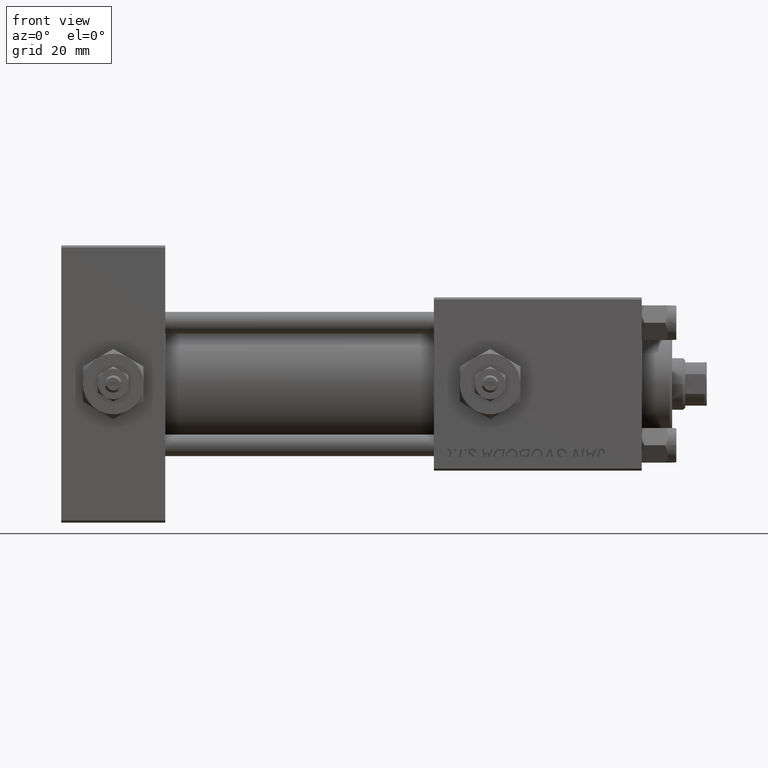
[diagram: clean part render]
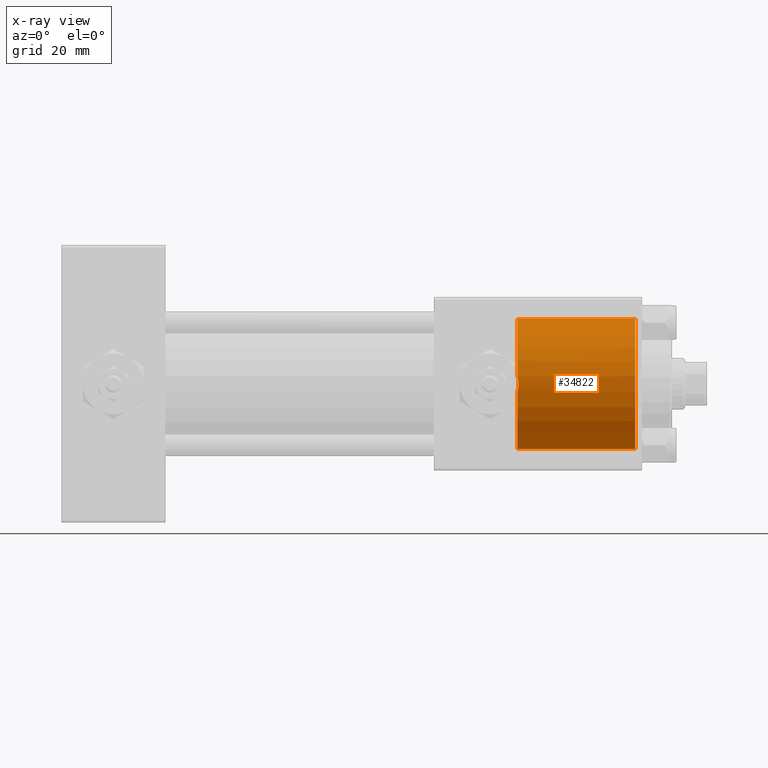
[diagram: x-ray — body ghosted, one internal face saturated and labeled with its STEP entity id]
A machine part, front view, then the same camera in x-ray: the body is ghosted and one INTERNAL B-rep face — a face not visible from any outside direction — is saturated and labeled: STEP entity #34822.
In plain terms, the highlighted cylindrical surface (partial cylindrical patch) has radius 15 mm, axis along (1, 0, 0).
Its self-contained STEP definition (entity closure, byte-faithful):
#416 = EDGE_CURVE ( 'NONE', #21000, #27237, #20303, .T. ) ;
#426 = CARTESIAN_POINT ( 'NONE',  ( 105.3000000000000114, -14.87930105885354060, 1.899052395275036220 ) ) ;
#827 = DIRECTION ( 'NONE',  ( 0.000000000000000000, 0.000000000000000000, -1.000000000000000000 ) ) ;
#1766 = ORIENTED_EDGE ( 'NONE', *, *, #31683, .F. ) ;
#1786 = EDGE_CURVE ( 'NONE', #30994, #14500, #28604, .T. ) ;
#2083 = EDGE_CURVE ( 'NONE', #21000, #30195, #32792, .T. ) ;
#2287 = VERTEX_POINT ( 'NONE', #38850 ) ;
#3849 = CARTESIAN_POINT ( 'NONE',  ( 105.5801520534215570, -15.00006670076156290, 0.3204703341157191243 ) ) ;
#5978 = AXIS2_PLACEMENT_3D ( 'NONE', #28137, #31802, #827 ) ;
#6795 = CARTESIAN_POINT ( 'NONE',  ( 132.5000000000000000, 0.000000000000000000, -15.00000000000000000 ) ) ;
#7241 = DIRECTION ( 'NONE',  ( 1.000000000000000000, -0.000000000000000000, -0.000000000000000000 ) ) ;
#8044 = CARTESIAN_POINT ( 'NONE',  ( 105.4859734583130120, -14.95804352012491023, -1.282095859327421650 ) ) ;
#8482 = AXIS2_PLACEMENT_3D ( 'NONE', #48656, #12694, #44709 ) ;
#9419 = VECTOR ( 'NONE', #19555, 1000.000000000000000 ) ;
#9993 = ORIENTED_EDGE ( 'NONE', *, *, #416, .T. ) ;
#10862 = ORIENTED_EDGE ( 'NONE', *, *, #2083, .F. ) ;
#11678 = CARTESIAN_POINT ( 'NONE',  ( 105.3000000000000114, 1.836970198721029589E-15, 15.00000000000000000 ) ) ;
#12694 = DIRECTION ( 'NONE',  ( 1.000000000000000000, 0.000000000000000000, 0.000000000000000000 ) ) ;
#12878 = EDGE_CURVE ( 'NONE', #2287, #27237, #18781, .T. ) ;
#13301 = CARTESIAN_POINT ( 'NONE',  ( 105.3000000000000114, -14.87930105885354060, 1.899052395275036220 ) ) ;
#14500 = VERTEX_POINT ( 'NONE', #6795 ) ;
#16691 = CARTESIAN_POINT ( 'NONE',  ( 105.3929950386892784, -14.91867580780344227, 1.590546560891513028 ) ) ;
#16944 = CARTESIAN_POINT ( 'NONE',  ( 105.3000000000000114, -14.87930105885354060, -1.899052395275038219 ) ) ;
#18278 = CARTESIAN_POINT ( 'NONE',  ( 105.3000000000000114, -14.87930105885354060, -1.899052395275038219 ) ) ;
#18535 = CARTESIAN_POINT ( 'NONE',  ( 105.3000000000000114, 0.000000000000000000, -15.00000000000000000 ) ) ;
#18781 = CIRCLE ( 'NONE', #32200, 15.00000000000000000 ) ;
#19555 = DIRECTION ( 'NONE',  ( 1.000000000000000000, -0.000000000000000000, -0.000000000000000000 ) ) ;
#20171 = AXIS2_PLACEMENT_3D ( 'NONE', #42713, #46911, #41942 ) ;
#20303 = B_SPLINE_CURVE_WITH_KNOTS ( 'NONE', 3,
 ( #16944, #8044, #44764, #3849, #20365, #51883, #16691, #426 ),
 .UNSPECIFIED., .F., .F.,
 ( 4, 2, 2, 4 ),
 ( 6.505213034913026604E-19, 0.001920194834846953571, 0.002880292252270429815, 0.003840389669693906709 ),
 .UNSPECIFIED. ) ;
#20365 = CARTESIAN_POINT ( 'NONE',  ( 105.5562853405998567, -14.98955309225332932, 0.6436176373405300133 ) ) ;
#21000 = VERTEX_POINT ( 'NONE', #18278 ) ;
#24075 = ORIENTED_EDGE ( 'NONE', *, *, #1786, .T. ) ;
#24269 = LINE ( 'NONE', #11678, #9419 ) ;
#26163 = ORIENTED_EDGE ( 'NONE', *, *, #12878, .F. ) ;
#27237 = VERTEX_POINT ( 'NONE', #13301 ) ;
#28137 = CARTESIAN_POINT ( 'NONE',  ( 105.3000000000000114, 0.000000000000000000, 0.000000000000000000 ) ) ;
#28604 = CIRCLE ( 'NONE', #8482, 15.00000000000000000 ) ;
#30195 = VERTEX_POINT ( 'NONE', #50155 ) ;
#30394 = FACE_OUTER_BOUND ( 'NONE', #39131, .T. ) ;
#30994 = VERTEX_POINT ( 'NONE', #45508 ) ;
#31683 = EDGE_CURVE ( 'NONE', #30195, #14500, #43707, .T. ) ;
#31802 = DIRECTION ( 'NONE',  ( 1.000000000000000000, 0.000000000000000000, 0.000000000000000000 ) ) ;
#32200 = AXIS2_PLACEMENT_3D ( 'NONE', #44250, #32691, #49226 ) ;
#32691 = DIRECTION ( 'NONE',  ( 1.000000000000000000, 0.000000000000000000, 0.000000000000000000 ) ) ;
#32792 = CIRCLE ( 'NONE', #5978, 15.00000000000000000 ) ;
#34575 = CYLINDRICAL_SURFACE ( 'NONE', #20171, 15.00000000000000000 ) ;
#34822 = ADVANCED_FACE ( 'NONE', ( #30394 ), #34575, .F. ) ;
#38850 = CARTESIAN_POINT ( 'NONE',  ( 105.3000000000000114, 1.836970198721029589E-15, 15.00000000000000000 ) ) ;
#39131 = EDGE_LOOP ( 'NONE', ( #26163, #49753, #24075, #1766, #10862, #9993 ) ) ;
#39350 = EDGE_CURVE ( 'NONE', #2287, #30994, #24269, .T. ) ;
#41942 = DIRECTION ( 'NONE',  ( 0.000000000000000000, 0.000000000000000000, -1.000000000000000000 ) ) ;
#42713 = CARTESIAN_POINT ( 'NONE',  ( 105.3000000000000114, 0.000000000000000000, 0.000000000000000000 ) ) ;
#43707 = LINE ( 'NONE', #18535, #47045 ) ;
#44250 = CARTESIAN_POINT ( 'NONE',  ( 105.3000000000000114, 0.000000000000000000, 0.000000000000000000 ) ) ;
#44709 = DIRECTION ( 'NONE',  ( 0.000000000000000000, 0.000000000000000000, 1.000000000000000000 ) ) ;
#44764 = CARTESIAN_POINT ( 'NONE',  ( 105.5796936925953986, -14.99986563316393529, -0.6502615138571983255 ) ) ;
#45508 = CARTESIAN_POINT ( 'NONE',  ( 132.5000000000000000, 1.836970198721029589E-15, 15.00000000000000000 ) ) ;
#46911 = DIRECTION ( 'NONE',  ( 1.000000000000000000, -0.000000000000000000, -0.000000000000000000 ) ) ;
#47045 = VECTOR ( 'NONE', #7241, 1000.000000000000000 ) ;
#48656 = CARTESIAN_POINT ( 'NONE',  ( 132.5000000000000000, 0.000000000000000000, 0.000000000000000000 ) ) ;
#49226 = DIRECTION ( 'NONE',  ( 0.000000000000000000, 0.000000000000000000, -1.000000000000000000 ) ) ;
#49753 = ORIENTED_EDGE ( 'NONE', *, *, #39350, .T. ) ;
#50155 = CARTESIAN_POINT ( 'NONE',  ( 105.3000000000000114, 0.000000000000000000, -15.00000000000000000 ) ) ;
#51883 = CARTESIAN_POINT ( 'NONE',  ( 105.4626984842214767, -14.94885601429338173, 1.277751710036709509 ) ) ;